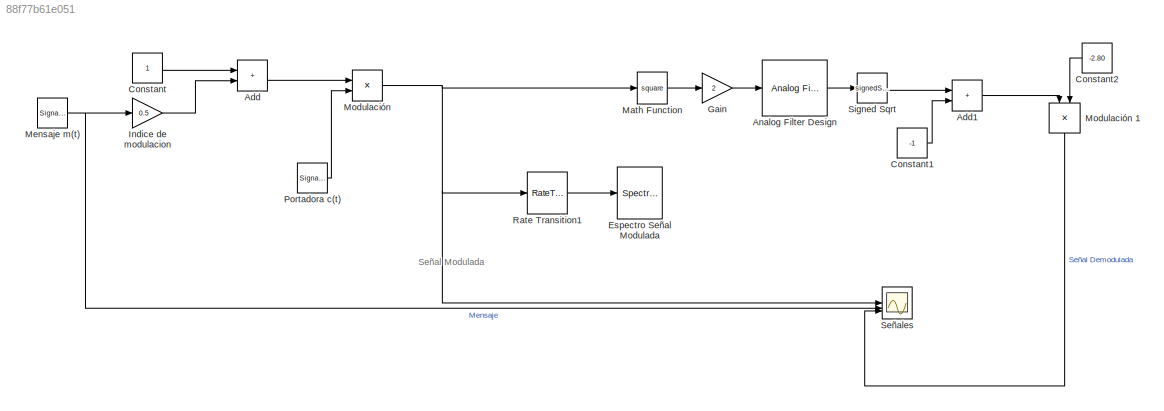
MODEL slx_88f77b61e051
KIND model
CONFIG AbsTol = auto
CONFIG EnableMultiTasking = on
CONFIG FixedStep = auto
CONFIG MaxStep = auto
CONFIG MinStep = auto
CONFIG RelTol = 1e-3
CONFIG SampleTimeConstraint = Unconstrained
CONFIG SolverName = VariableStepAuto
CONFIG StartTime = 0.0
CONFIG StopTime = 1
BLOCK [Sum] Add
  IconShape = rectangular
BLOCK [Sum] Add1
  IconShape = rectangular
BLOCK [Reference] Analog Filter Design  REF=dspfdesign/Analog
Filter Design
  SourceBlock = dspfdesign/Analog\nFilter Design
  SourceType = Analog Filter Design
BLOCK [Constant] Constant
BLOCK [Constant] Constant1
  Value = -1
BLOCK [Constant] Constant2
  Value = -2.80
BLOCK [SpectrumAnalyzer] Espectro Señal Modulada
  AllowFFTLengthLessThanSamplesPerUpdate = on
  AveragingMethod = Running
  AxesScaling = Manual
  DefaultConfigurationName = spbscopes.SpectrumAnalyzerBlockCfg
  GraphicalSettings = {"GraphicalSettings":{"Style":{"BackgroundColor":[0.12941176470588237,0.12941176470588237,0.12941176470588237],"AxesColor":[0,0,0],"LabelsColor":[0.6862745098039216,0.6862745098039216,0.6862745098039216],"PreserveColors":false,"Visible":[true],"LineStyle":["-"],"LineWidth":[2],"BarWidth":[0.9],"LineColor":[[1,0.9098039215686274,0.39215686274509803]],"LineFaceAlpha":[1],"LineEdgeAlpha":[1],"Marker"...<+943ch>
  Method = Welch
  SampleRate = 1000000
  ScopeFrameLocation = window
  ScopeSpecificationString = spbscopes.SpectrumAnalyzerBlockCfg('CurrentConfiguration', extmgr.ConfigurationSet(extmgr.Configuration('Core','General UI',true),extmgr.Configuration('Core','Source UI',true),extmgr.Configuration('Sources','WiredSimulink',true),extmgr.Configuration('Visuals','Spectrum',true,'AxesProperties',struct('Color',[0 0 0],'XColor',[0.686274509803922 0.686274509803922 0.686274509803922],'YColor',[0.6862745...<+1840ch>
  ShowGrid = off
  Span = 1000000
  StartFrequency = -500000
  StopFrequency = 500000
  WasSavedAsWebScope = on
  WindowPosition = [312.000000,16.000000,1297.000000,1048.000000,]
  YLabel = dBm
  YLimits = [-111.39957098308905,31.069144841263995]
BLOCK [Gain] Gain
  Gain = 2
BLOCK [Gain] Indice de modulacion 
  Gain = 0.5
BLOCK [Math] Math Function
  Operator = square
  SignedPower = on
BLOCK [SignalGenerator] Mensaje m(t) 
  Frequency = 10000
BLOCK [Product] Modulación 
BLOCK [Product] Modulación 1
  NameLocation = left
BLOCK [SignalGenerator] Portadora c(t) 
  Frequency = 50000
BLOCK [RateTransition] Rate Transition1
  NameLocation = top
  OutPortSampleTime = 0.000001
BLOCK [Scope] Señales
  DefaultConfigurationName = spbscopes.TimeScopeBlockCfg
  Floating = off
  NumInputPorts = 3
  ScopeSpecificationString = spbscopes.TimeScopeBlockCfg('CurrentConfiguration', extmgr.ConfigurationSet(extmgr.Configuration('Core','General UI',true,'DisplayFullSourceName',true),extmgr.Configuration('Core','Source UI',true),extmgr.Configuration('Sources','WiredSimulink',true),extmgr.Configuration('Visuals','Time Domain',true,'DisplayLayoutDimensions',[3 1],'DisplayPropertyDefaults',struct('YLabelReal','Amplitude','AxesColo...<+2944ch>
  UserDataPersistent = on
BLOCK [Sqrt] Signed Sqrt
  Operator = signedSqrt
ANNOTATION (root): Señal Modulada
LINE Add1:1 -> Modulación 1:1
LINE Add:1 -> Modulación :1
LINE Analog Filter Design:1 -> Signed Sqrt:1
LINE Constant1:1 -> Add1:2
LINE Constant2:1 -> Modulación 1:2
LINE Constant:1 -> Add:1
LINE Gain:1 -> Analog Filter Design:1
LINE Indice de modulacion :1 -> Add:2
LINE Math Function:1 -> Gain:1
NET Mensaje m(t) :1 -> Indice de modulacion :1, Señales:2
LINE Modulación 1:1 -> Señales:3
NET Modulación :1 -> Math Function:1, Rate Transition1:1, Señales:1
LINE Portadora c(t) :1 -> Modulación :2
LINE Rate Transition1:1 -> Espectro Señal Modulada:1
LINE Signed Sqrt:1 -> Add1:1
note: NET lines group one-source signal fan-out (src -> all destinations, sorted); 1:1 wires keep LINE
